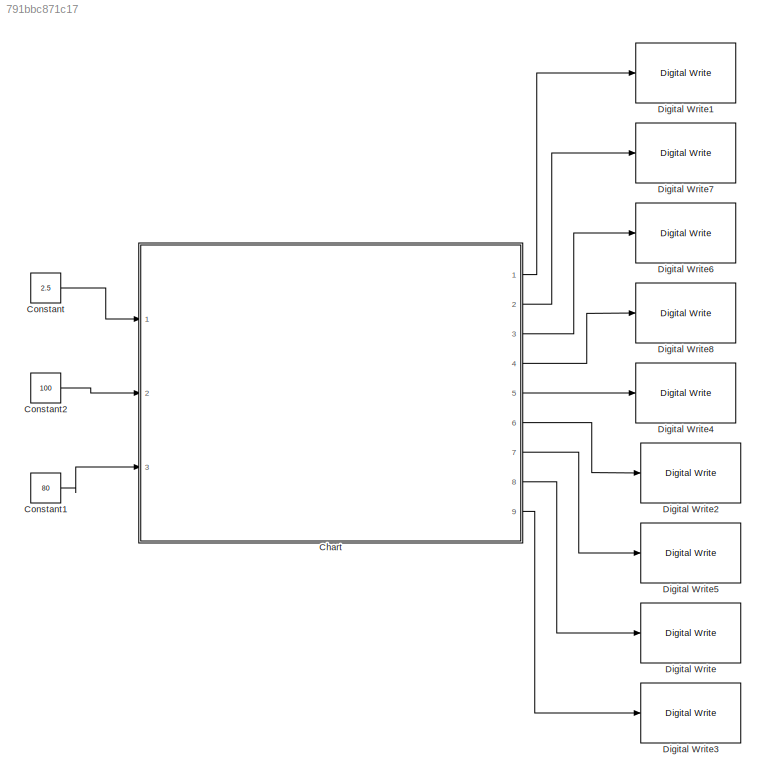
MODEL slx_791bbc871c17
KIND model
CONFIG AbsTol = auto
CONFIG EnableMultiTasking = on
CONFIG FixedStep = 1e-3
CONFIG MaxStep = auto
CONFIG MinStep = auto
CONFIG RelTol = 1e-3
CONFIG SampleTimeConstraint = Unconstrained
CONFIG SolverName = FixedStepAuto
CONFIG StartTime = 0.0
CONFIG StopTime = inf
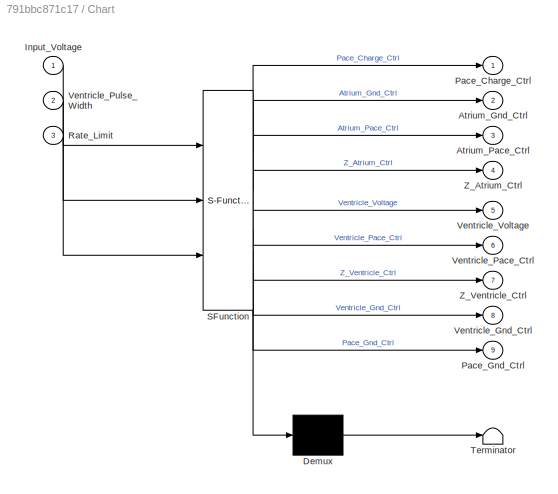
BLOCK [SubSystem] Chart
  ErrorFcn = Stateflow.Translate.translate
  PermitHierarchicalResolution = ExplicitOnly
  Ports = [3, 9]
  RequestExecContextInheritance = off
  SFBlockType = Chart
  TreatAsAtomicUnit = on
BLOCK [Demux] Chart/ Demux 
  Outputs = 1
  Ports = [1, 1]
BLOCK [S-Function] Chart/ SFunction 
  EnableBusSupport = on
  FunctionName = sf_sfun
  PortCounts = [3 10]
  Ports = [3, 10]
  SFcnIsStateOwnerBlock = off
  SFunctionDeploymentMode = off
  Tag = Stateflow S-Function 3
BLOCK [Terminator] Chart/ Terminator 
BLOCK [Outport] Chart/Atrium_Gnd_Ctrl
  Port = 2
BLOCK [Outport] Chart/Atrium_Pace_Ctrl
  Port = 3
BLOCK [Inport] Chart/Input_Voltage
BLOCK [Outport] Chart/Pace_Charge_Ctrl
BLOCK [Outport] Chart/Pace_Gnd_Ctrl
  Port = 9
BLOCK [Inport] Chart/Rate_Limit
  Port = 3
BLOCK [Outport] Chart/Ventricle_Gnd_Ctrl
  Port = 8
BLOCK [Outport] Chart/Ventricle_Pace_Ctrl
  Port = 6
BLOCK [Inport] Chart/Ventricle_Pulse_Width
  Port = 2
BLOCK [Outport] Chart/Ventricle_Voltage
  Port = 5
BLOCK [Outport] Chart/Z_Atrium_Ctrl
  Port = 4
BLOCK [Outport] Chart/Z_Ventricle_Ctrl
  Port = 7
BLOCK [Constant] Constant
  OutDataTypeStr = double
  Value = 2.5
BLOCK [Constant] Constant1
  OutDataTypeStr = double
  Value = 80
BLOCK [Constant] Constant2
  Value = 100
BLOCK [Reference] Digital Write  REF=frdmk64flib/Digital Write
  Ports = [1]
  SourceBlock = frdmk64flib/Digital Write
  SourceProductBaseCode = EC_FRDM_K64F
  SourceType = freedomk64f.DigitalWrite
BLOCK [Reference] Digital Write1  REF=frdmk64flib/Digital Write
  Ports = [1]
  SourceBlock = frdmk64flib/Digital Write
  SourceProductBaseCode = EC_FRDM_K64F
  SourceType = freedomk64f.DigitalWrite
BLOCK [Reference] Digital Write2  REF=frdmk64flib/Digital Write
  Ports = [1]
  SourceBlock = frdmk64flib/Digital Write
  SourceProductBaseCode = EC_FRDM_K64F
  SourceType = freedomk64f.DigitalWrite
BLOCK [Reference] Digital Write3  REF=frdmk64flib/Digital Write
  Ports = [1]
  SourceBlock = frdmk64flib/Digital Write
  SourceProductBaseCode = EC_FRDM_K64F
  SourceType = freedomk64f.DigitalWrite
BLOCK [Reference] Digital Write4  REF=frdmk64flib/Digital Write
  Ports = [1]
  SourceBlock = frdmk64flib/Digital Write
  SourceProductBaseCode = EC_FRDM_K64F
  SourceType = freedomk64f.DigitalWrite
BLOCK [Reference] Digital Write5  REF=frdmk64flib/Digital Write
  Ports = [1]
  SourceBlock = frdmk64flib/Digital Write
  SourceProductBaseCode = EC_FRDM_K64F
  SourceType = freedomk64f.DigitalWrite
BLOCK [Reference] Digital Write6  REF=frdmk64flib/Digital Write
  Ports = [1]
  SourceBlock = frdmk64flib/Digital Write
  SourceProductBaseCode = EC_FRDM_K64F
  SourceType = freedomk64f.DigitalWrite
BLOCK [Reference] Digital Write7  REF=frdmk64flib/Digital Write
  Ports = [1]
  SourceBlock = frdmk64flib/Digital Write
  SourceProductBaseCode = EC_FRDM_K64F
  SourceType = freedomk64f.DigitalWrite
BLOCK [Reference] Digital Write8  REF=frdmk64flib/Digital Write
  Ports = [1]
  SourceBlock = frdmk64flib/Digital Write
  SourceProductBaseCode = EC_FRDM_K64F
  SourceType = freedomk64f.DigitalWrite
LINE Chart:1 -> Digital Write1:1
LINE Chart:2 -> Digital Write7:1
LINE Chart:3 -> Digital Write6:1
LINE Chart:4 -> Digital Write8:1
LINE Chart:5 -> Digital Write4:1
LINE Chart:6 -> Digital Write2:1
LINE Chart:7 -> Digital Write5:1
LINE Chart:8 -> Digital Write:1
LINE Chart:9 -> Digital Write3:1
LINE Constant1:1 -> Chart:3
LINE Constant2:1 -> Chart:2
LINE Constant:1 -> Chart:1
CHART Chart states=2 transitions=3
  STATE_LABEL 'Charge_C22\nentry:\nAtrium_Pace_Ctrl = false;\nAtrium_Gnd_Ctrl = false;\nPace_Gnd_Ctrl = true;\nVentricle_Pace_Ctrl = false;\nZ_Atrium_Ctrl = false;\nZ_Ventricle_Ctrl = false;\nVentricle_Gnd_Ctrl = true;\nVentricle_Voltage = (Input_Voltage);\nPace_Charge_Ctrl = true;\n'
  STATE_LABEL 'Discharge_C22\nentry:\nPace_Charge_Ctrl = false;\nPace_Gnd_Ctrl = true;\nAtrium_Pace_Ctrl = false;\nAtrium_Gnd_Ctrl = false;\nZ_Atrium_Ctrl = false;\nZ_Ventricle_Ctrl = false;\nVentricle_Gnd_Ctrl = false;\nVentricle_Pace_Ctrl = true;\nVentricle_Voltage = 0;\n'
CHART  states=0 transitions=0
